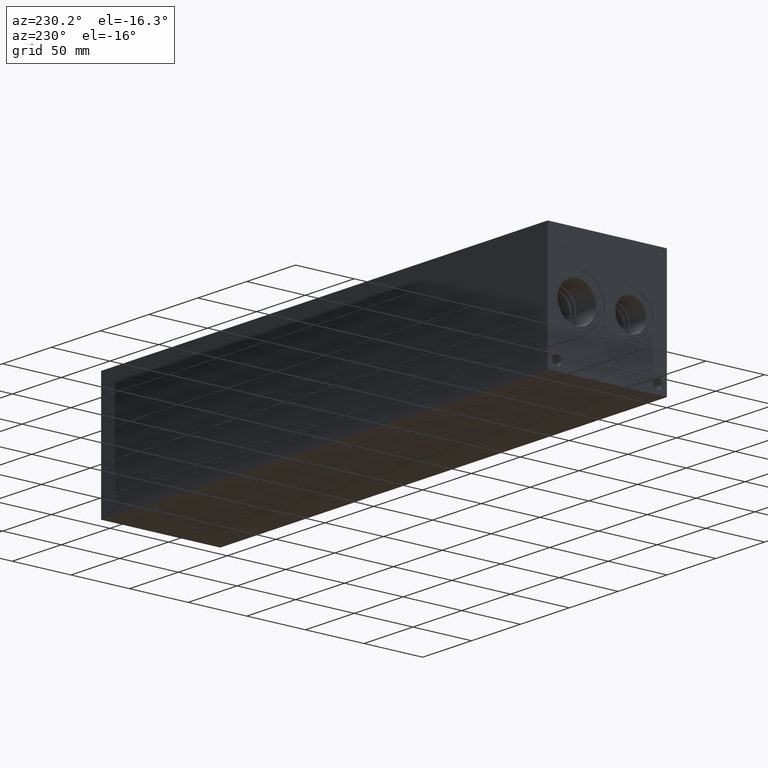
[diagram: clean part render]
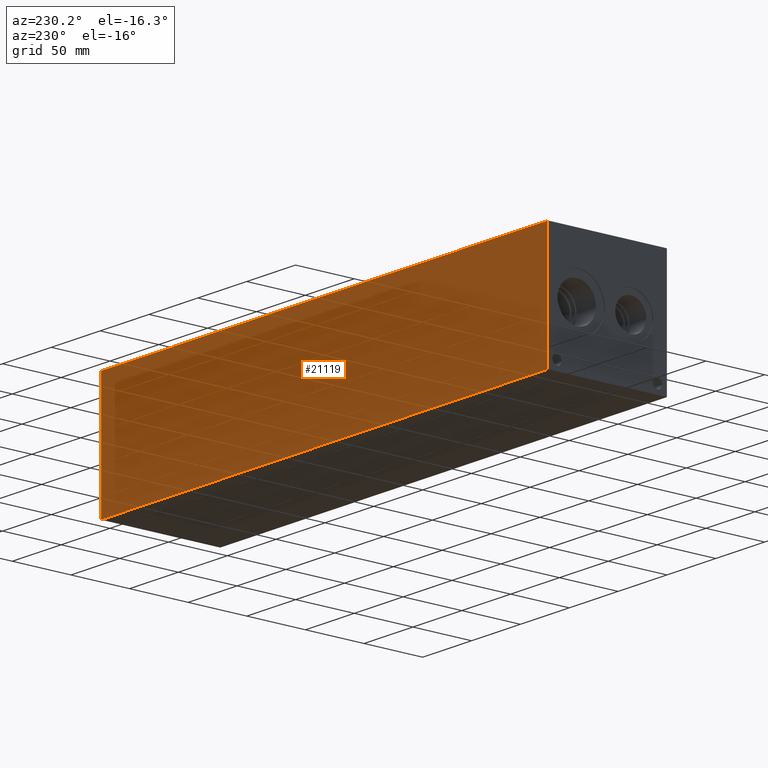
[diagram: same view with one face highlighted and labeled with its STEP entity id]
A machine part, auxiliary view. The second image highlights one B-rep face of the part: STEP entity #21119.
In plain terms, the highlighted planar face has unit normal (0, 1, 0).
Its self-contained STEP definition (entity closure, byte-faithful):
#3096=FACE_OUTER_BOUND('',#4370,.T.);
#4370=EDGE_LOOP('',(#18633,#18634,#18635,#18636));
#5725=LINE('',#34011,#7463);
#5785=LINE('',#34284,#7523);
#6183=LINE('',#36819,#7921);
#6184=LINE('',#36820,#7922);
#7463=VECTOR('',#24887,10.);
#7523=VECTOR('',#25001,10.);
#7921=VECTOR('',#27593,10.);
#7922=VECTOR('',#27594,10.);
#9107=VERTEX_POINT('',#34008);
#9108=VERTEX_POINT('',#34010);
#9165=VERTEX_POINT('',#34280);
#9166=VERTEX_POINT('',#34282);
#11757=EDGE_CURVE('',#9107,#9108,#5725,.T.);
#11841=EDGE_CURVE('',#9165,#9166,#5785,.T.);
#12937=EDGE_CURVE('',#9107,#9165,#6183,.T.);
#12938=EDGE_CURVE('',#9108,#9166,#6184,.T.);
#18633=ORIENTED_EDGE('',*,*,#12937,.T.);
#18634=ORIENTED_EDGE('',*,*,#11841,.T.);
#18635=ORIENTED_EDGE('',*,*,#12938,.F.);
#18636=ORIENTED_EDGE('',*,*,#11757,.F.);
#19349=PLANE('',#22708);
#21119=ADVANCED_FACE('',(#3096),#19349,.T.);
#22708=AXIS2_PLACEMENT_3D('',#36818,#27591,#27592);
#24887=DIRECTION('',(0.,0.,1.));
#25001=DIRECTION('',(0.,0.,1.));
#27591=DIRECTION('center_axis',(0.,1.,0.));
#27592=DIRECTION('ref_axis',(-1.,0.,0.));
#27593=DIRECTION('',(-1.,0.,0.));
#27594=DIRECTION('',(-1.,0.,0.));
#34008=CARTESIAN_POINT('',(457.2,101.6,0.));
#34010=CARTESIAN_POINT('',(457.2,101.6,101.6));
#34011=CARTESIAN_POINT('',(457.2,101.6,0.));
#34280=CARTESIAN_POINT('',(0.,101.6,0.));
#34282=CARTESIAN_POINT('',(0.,101.6,101.6));
#34284=CARTESIAN_POINT('',(0.,101.6,0.));
#36818=CARTESIAN_POINT('Origin',(457.2,101.6,0.));
#36819=CARTESIAN_POINT('',(457.2,101.6,0.));
#36820=CARTESIAN_POINT('',(457.2,101.6,101.6));